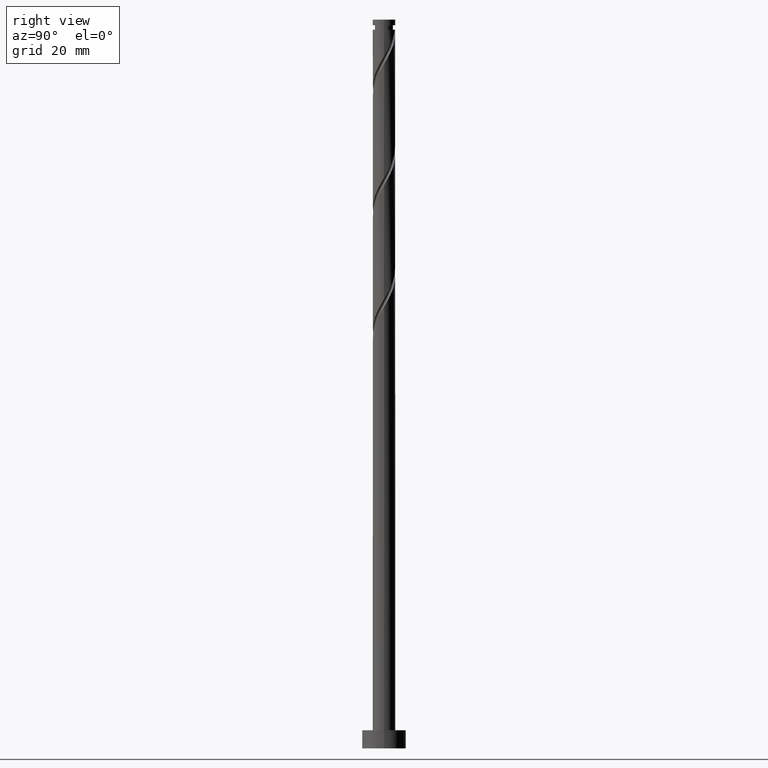
[diagram: clean part render]
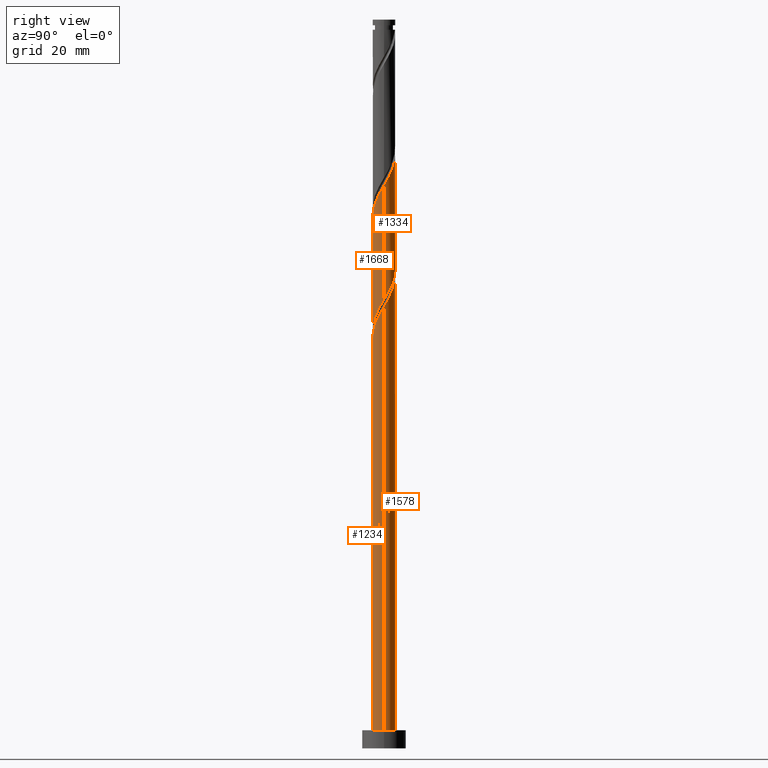
[diagram: same view with one multi-face feature highlighted, each face labeled with its STEP entity id]
A machine part, right view. The highlighted faces form ONE feature: a constant-radius fillet chain: 4 tangent blend faces with common blend radius 3.1 mm. The faces share edges in the B-rep.
Their STEP definitions:
[1] entity #1234 (Cylinder):
#24 = EDGE_CURVE ( 'NONE', #1745, #635, #381, .T. ) ;
#33 = CARTESIAN_POINT ( 'NONE',  ( 3.100000000000003197, -0.09530005013878890818, 120.9722201662647905 ) ) ;
#65 = VECTOR ( 'NONE', #986, 1000.000000000000000 ) ;
#68 = CARTESIAN_POINT ( 'NONE',  ( -1.371739143660140492, -2.809785738221576512, 110.3933949539474355 ) ) ;
#76 = CARTESIAN_POINT ( 'NONE',  ( 3.094146113249975460, -0.1904201403740988507, 120.8100616206141069 ) ) ;
#83 = CARTESIAN_POINT ( 'NONE',  ( 0.000000000000000000, 0.000000000000000000, 200.0000000000000000 ) ) ;
#97 = CARTESIAN_POINT ( 'NONE',  ( 0.2169319233355950505, -3.119215400321167841, 113.1711727317252070 ) ) ;
#121 = ORIENTED_EDGE ( 'NONE', *, *, #332, .F. ) ;
#169 = ORIENTED_EDGE ( 'NONE', *, *, #191, .T. ) ;
#191 = EDGE_CURVE ( 'NONE', #1492, #1180, #1040, .T. ) ;
#210 = CARTESIAN_POINT ( 'NONE',  ( -2.052224327502170542, -2.359012395595049938, 109.0045060650585640 ) ) ;
#236 = DIRECTION ( 'NONE',  ( -0.000000000000000000, -0.000000000000000000, -1.000000000000000000 ) ) ;
#243 = CYLINDRICAL_SURFACE ( 'NONE', #524, 3.100000000000000089 ) ;
#251 = ORIENTED_EDGE ( 'NONE', *, *, #24, .F. ) ;
#273 = CARTESIAN_POINT ( 'NONE',  ( -2.956784599678840220, -1.016852498676614092, 106.2267282872807783 ) ) ;
#310 = CARTESIAN_POINT ( 'NONE',  ( -2.592853814885981656, -1.747476256661028016, 107.6156171761696925 ) ) ;
#324 = CARTESIAN_POINT ( 'NONE',  ( -3.100000000000000089, 0.000000000000000000, 5.000000000000000000 ) ) ;
#332 = EDGE_CURVE ( 'NONE', #635, #1180, #378, .T. ) ;
#335 = CARTESIAN_POINT ( 'NONE',  ( 1.382164377668820388, -2.774819207282409383, 115.2545060650585498 ) ) ;
#353 = CARTESIAN_POINT ( 'NONE',  ( 3.100000000000002309, 0.000000000000000000, 121.1353838542929253 ) ) ;
#361 = AXIS2_PLACEMENT_3D ( 'NONE', #550, #428, #413 ) ;
#378 = LINE ( 'NONE', #1406, #687 ) ;
#381 =( BOUNDED_CURVE ( )  B_SPLINE_CURVE ( 2, ( #1104, #1598, #401, #273, #1485, #310, #481, #210, #1696, #68, #855, #1428, #1644, #97, #1369, #446, #335, #1514, #616, #1291, #755, #984, #1276, #494, #76, #33, #585 ),
 .UNSPECIFIED., .F., .T. ) 
 B_SPLINE_CURVE_WITH_KNOTS ( ( 3, 2, 2, 2, 2, 2, 2, 2, 2, 2, 2, 2, 2, 3 ),
 ( 0.05453176698144614892, 0.06250000000000000000, 0.07291666666666662966, 0.08333333333333337034, 0.09375000000000000000, 0.1041666666666666297, 0.1145833333333333703, 0.1250000000000000000, 0.1354166666666666297, 0.1458333333333333703, 0.1562500000000000000, 0.1666666666666666297, 0.1770833333333333703, 0.1795317669814463502 ),
 .UNSPECIFIED. ) 
 CURVE ( )  GEOMETRIC_REPRESENTATION_ITEM ( )  RATIONAL_B_SPLINE_CURVE ( ( 0.9062941362546501622, 0.9031415850403541334, 0.9090909090909298218, 0.9013135103398480785, 0.9090909090909298218, 0.9013135103398480785, 0.9090909090909298218, 0.9013135103398480785, 0.9090909090909298218, 0.9013135103398480785, 0.9090909090909298218, 0.9013135103398480785, 0.9090909090909298218, 0.9013135103398480785, 0.9090909090909298218, 0.9013135103398480785, 0.9090909090909298218, 0.9013135103398480785, 0.9090909090909298218, 0.9013135103398480785, 0.9090909090909298218, 0.9013135103398480785, 0.9090909090909298218, 0.9013135103398480785, 0.9090909090909298218, 0.9072628343904235448, 0.9062941362546501622 ) ) 
 REPRESENTATION_ITEM ( '' )  );
#401 = CARTESIAN_POINT ( 'NONE',  ( -3.038000000000003364, -0.6168922110061052511, 105.5322838428363212 ) ) ;
#413 = DIRECTION ( 'NONE',  ( 1.000000000000000000, 0.000000000000000000, 0.000000000000000000 ) ) ;
#428 = DIRECTION ( 'NONE',  ( 0.000000000000000000, 0.000000000000000000, 1.000000000000000000 ) ) ;
#446 = CARTESIAN_POINT ( 'NONE',  ( 1.016852498676613870, -2.956784599678840220, 114.5600616206141353 ) ) ;
#481 = CARTESIAN_POINT ( 'NONE',  ( -2.322539071194074545, -2.053244326128038200, 108.3100616206141211 ) ) ;
#494 = CARTESIAN_POINT ( 'NONE',  ( 3.069076826178783524, -0.5977722040837909478, 120.1156171761696640 ) ) ;
#524 = AXIS2_PLACEMENT_3D ( 'NONE', #83, #236, #638 ) ;
#550 = CARTESIAN_POINT ( 'NONE',  ( 0.000000000000000000, 0.000000000000000000, 5.000000000000000000 ) ) ;
#585 = CARTESIAN_POINT ( 'NONE',  ( 3.100000000000002309, 0.000000000000000000, 121.1353838542929253 ) ) ;
#616 = CARTESIAN_POINT ( 'NONE',  ( 2.053244326128038200, -2.322539071194075877, 116.6433949539474355 ) ) ;
#635 = VERTEX_POINT ( 'NONE', #353 ) ;
#638 = DIRECTION ( 'NONE',  ( -1.000000000000000000, 0.000000000000000000, 0.000000000000000000 ) ) ;
#658 = FACE_OUTER_BOUND ( 'NONE', #1230, .T. ) ;
#687 = VECTOR ( 'NONE', #1272, 1000.000000000000000 ) ;
#755 = CARTESIAN_POINT ( 'NONE',  ( 2.584399066908312115, -1.711981735581156183, 118.0322838428363497 ) ) ;
#855 = CARTESIAN_POINT ( 'NONE',  ( -0.9847556738719654978, -2.939431282200180462, 111.0878393983919068 ) ) ;
#877 = LINE ( 'NONE', #1007, #65 ) ;
#984 = CARTESIAN_POINT ( 'NONE',  ( 2.809785738221576512, -1.371739143660140492, 118.7267282872807783 ) ) ;
#986 = DIRECTION ( 'NONE',  ( -0.000000000000000000, -0.000000000000000000, -1.000000000000000000 ) ) ;
#1007 = CARTESIAN_POINT ( 'NONE',  ( -3.100000000000000089, 0.000000000000000000, 200.0000000000000000 ) ) ;
#1040 = CIRCLE ( 'NONE', #361, 3.100000000000000089 ) ;
#1048 = EDGE_CURVE ( 'NONE', #1745, #1492, #877, .T. ) ;
#1104 = CARTESIAN_POINT ( 'NONE',  ( -3.100000000000002309, -1.958945762114218998E-15, 104.4687171876262539 ) ) ;
#1180 = VERTEX_POINT ( 'NONE', #1663 ) ;
#1230 = EDGE_LOOP ( 'NONE', ( #121, #251, #1664, #169 ) ) ;
#1234 = ADVANCED_FACE ( 'NONE', ( #658 ), #243, .T. ) ;
#1272 = DIRECTION ( 'NONE',  ( -0.000000000000000000, -0.000000000000000000, -1.000000000000000000 ) ) ;
#1276 = CARTESIAN_POINT ( 'NONE',  ( 2.939431282200180462, -0.9847556738719657199, 119.4211727317252212 ) ) ;
#1291 = CARTESIAN_POINT ( 'NONE',  ( 2.359012395595049938, -2.052224327502170542, 117.3378393983918926 ) ) ;
#1369 = CARTESIAN_POINT ( 'NONE',  ( 0.6168922110061049180, -3.038000000000003364, 113.8656171761696214 ) ) ;
#1406 = CARTESIAN_POINT ( 'NONE',  ( 3.100000000000000089, 3.796405077356794918E-16, 200.0000000000000000 ) ) ;
#1428 = CARTESIAN_POINT ( 'NONE',  ( -0.5977722040837896156, -3.069076826178783968, 111.7822838428363212 ) ) ;
#1485 = CARTESIAN_POINT ( 'NONE',  ( -2.774819207282409383, -1.382164377668821054, 106.9211727317252212 ) ) ;
#1492 = VERTEX_POINT ( 'NONE', #324 ) ;
#1514 = CARTESIAN_POINT ( 'NONE',  ( 1.747476256661027350, -2.592853814885982100, 115.9489505095030069 ) ) ;
#1597 = CARTESIAN_POINT ( 'NONE',  ( -3.100000000000002309, -1.958945762114218998E-15, 104.4687171876262539 ) ) ;
#1598 = CARTESIAN_POINT ( 'NONE',  ( -3.100000000000005418, -0.3115617227303494885, 105.0021435568155113 ) ) ;
#1644 = CARTESIAN_POINT ( 'NONE',  ( -0.1904201403740973519, -3.094146113249975460, 112.4767282872807925 ) ) ;
#1663 = CARTESIAN_POINT ( 'NONE',  ( 3.100000000000000089, 3.796405077356794918E-16, 5.000000000000000000 ) ) ;
#1664 = ORIENTED_EDGE ( 'NONE', *, *, #1048, .T. ) ;
#1696 = CARTESIAN_POINT ( 'NONE',  ( -1.711981735581154407, -2.584399066908313003, 109.6989505095029926 ) ) ;
#1745 = VERTEX_POINT ( 'NONE', #1597 ) ;
[2] entity #1578 (Cylinder):
#11 = CARTESIAN_POINT ( 'NONE',  ( 0.6168922110061058062, 3.037999999999999812, 97.19895050950300686 ) ) ;
#28 = CARTESIAN_POINT ( 'NONE',  ( -1.016852498676614758, 2.956784599678839776, 97.89339495394742130 ) ) ;
#55 = EDGE_CURVE ( 'NONE', #412, #425, #927, .T. ) ;
#65 = VECTOR ( 'NONE', #986, 1000.000000000000000 ) ;
#111 = CARTESIAN_POINT ( 'NONE',  ( -2.584399066908313447, 1.711981735581154185, 134.6989505095030211 ) ) ;
#118 = CARTESIAN_POINT ( 'NONE',  ( -3.100000000000000977, -5.174009417492547968E-15, 106.5958504980464170 ) ) ;
#130 = ORIENTED_EDGE ( 'NONE', *, *, #332, .T. ) ;
#147 = AXIS2_PLACEMENT_3D ( 'NONE', #270, #252, #815 ) ;
#158 = EDGE_LOOP ( 'NONE', ( #518, #130, #679, #427, #1613, #963, #558, #1709 ) ) ;
#202 = CARTESIAN_POINT ( 'NONE',  ( -3.037999999999999812, 0.6168922110061053621, 105.5322838428363497 ) ) ;
#205 = CARTESIAN_POINT ( 'NONE',  ( 0.000000000000000000, 0.000000000000000000, 200.0000000000000000 ) ) ;
#221 = CARTESIAN_POINT ( 'NONE',  ( -2.809785738221577400, 1.371739143660139382, 135.3933949539474213 ) ) ;
#252 = DIRECTION ( 'NONE',  ( -4.970141791967064741E-30, -3.357529308342211249E-14, -1.000000000000000000 ) ) ;
#270 = CARTESIAN_POINT ( 'NONE',  ( 0.000000000000000000, 0.000000000000000000, 97.19895050950310633 ) ) ;
#316 = EDGE_CURVE ( 'NONE', #933, #412, #368, .T. ) ;
#324 = CARTESIAN_POINT ( 'NONE',  ( -3.100000000000000089, 0.000000000000000000, 5.000000000000000000 ) ) ;
#331 = CIRCLE ( 'NONE', #147, 3.100000000000000089 ) ;
#332 = EDGE_CURVE ( 'NONE', #635, #1180, #378, .T. ) ;
#347 = CARTESIAN_POINT ( 'NONE',  ( 2.052224327502171430, 2.359012395595048162, 125.6711727317252354 ) ) ;
#353 = CARTESIAN_POINT ( 'NONE',  ( 3.100000000000002309, 0.000000000000000000, 121.1353838542929253 ) ) ;
#355 = CARTESIAN_POINT ( 'NONE',  ( -0.9847556738719625002, 2.939431282200177353, 99.97672828728079253 ) ) ;
#362 = CARTESIAN_POINT ( 'NONE',  ( 0.5977722040837911699, 3.069076826178783524, 128.4489505095029926 ) ) ;
#368 = LINE ( 'NONE', #1718, #1429 ) ;
#371 = CARTESIAN_POINT ( 'NONE',  ( -3.094146113249975460, 0.1904201403740971021, 137.4767282872807641 ) ) ;
#378 = LINE ( 'NONE', #1406, #687 ) ;
#383 = CARTESIAN_POINT ( 'NONE',  ( 0.9847556738719657199, 2.939431282200179574, 127.7545060650585356 ) ) ;
#388 = CARTESIAN_POINT ( 'NONE',  ( 3.100000000000002753, 0.3115617227303551506, 121.6688102234821969 ) ) ;
#412 = VERTEX_POINT ( 'NONE', #118 ) ;
#425 = VERTEX_POINT ( 'NONE', #11 ) ;
#427 = ORIENTED_EDGE ( 'NONE', *, *, #1048, .F. ) ;
#439 = CARTESIAN_POINT ( 'NONE',  ( -2.584399066908313447, 1.711981735581154185, 101.3656171761696925 ) ) ;
#468 = EDGE_CURVE ( 'NONE', #1630, #425, #331, .T. ) ;
#473 = CARTESIAN_POINT ( 'NONE',  ( -1.371739143660136939, 2.809785738221574292, 100.6711727317252354 ) ) ;
#485 = DIRECTION ( 'NONE',  ( -1.000000000000000000, 0.000000000000000000, 0.000000000000000000 ) ) ;
#510 = CARTESIAN_POINT ( 'NONE',  ( -2.939431282200180906, 0.9847556738719646097, 136.0878393983918784 ) ) ;
#518 = ORIENTED_EDGE ( 'NONE', *, *, #586, .F. ) ;
#534 = CARTESIAN_POINT ( 'NONE',  ( -3.100000000000002309, 0.09530005013880209208, 137.6388868329314334 ) ) ;
#542 = CARTESIAN_POINT ( 'NONE',  ( -1.382164377668821498, 2.774819207282409383, 98.58783939839189259 ) ) ;
#551 = CARTESIAN_POINT ( 'NONE',  ( -2.939431282200180906, 0.9847556738719646097, 102.7545060650585782 ) ) ;
#553 = AXIS2_PLACEMENT_3D ( 'NONE', #205, #1130, #485 ) ;
#558 = ORIENTED_EDGE ( 'NONE', *, *, #55, .F. ) ;
#586 = EDGE_CURVE ( 'NONE', #635, #933, #688, .T. ) ;
#624 = CARTESIAN_POINT ( 'NONE',  ( -2.592853814885977215, 1.747476256661027572, 103.4489505095030211 ) ) ;
#635 = VERTEX_POINT ( 'NONE', #353 ) ;
#679 = ORIENTED_EDGE ( 'NONE', *, *, #1143, .T. ) ;
#684 = CARTESIAN_POINT ( 'NONE',  ( 2.774819207282409383, 1.382164377668820165, 123.5878393983918784 ) ) ;
#686 = CARTESIAN_POINT ( 'NONE',  ( -2.053244326128039088, 2.322539071194074545, 99.97672828728077832 ) ) ;
#687 = VECTOR ( 'NONE', #1272, 1000.000000000000000 ) ;
#688 =( BOUNDED_CURVE ( )  B_SPLINE_CURVE ( 2, ( #1586, #388, #931, #806, #684, #1212, #1682, #347, #762, #1282, #383, #362, #1436, #1034, #1426, #904, #809, #1556, #1042, #1711, #111, #221, #510, #934, #371, #534, #770 ),
 .UNSPECIFIED., .F., .T. ) 
 B_SPLINE_CURVE_WITH_KNOTS ( ( 3, 2, 2, 2, 2, 2, 2, 2, 2, 2, 2, 2, 2, 3 ),
 ( 0.1795317669814463502, 0.1875000000000000000, 0.1979166666666666297, 0.2083333333333333703, 0.2187500000000000000, 0.2291666666666666297, 0.2395833333333333703, 0.2500000000000000000, 0.2604166666666666297, 0.2708333333333333703, 0.2812500000000000000, 0.2916666666666666297, 0.3020833333333333703, 0.3045317669814459616 ),
 .UNSPECIFIED. ) 
 CURVE ( )  GEOMETRIC_REPRESENTATION_ITEM ( )  RATIONAL_B_SPLINE_CURVE ( ( 0.9062941362546501622, 0.9031415850403543555, 0.9090909090909298218, 0.9013135103398480785, 0.9090909090909298218, 0.9013135103398480785, 0.9090909090909298218, 0.9013135103398480785, 0.9090909090909298218, 0.9013135103398480785, 0.9090909090909298218, 0.9013135103398480785, 0.9090909090909298218, 0.9013135103398480785, 0.9090909090909298218, 0.9013135103398480785, 0.9090909090909298218, 0.9013135103398480785, 0.9090909090909298218, 0.9013135103398480785, 0.9090909090909298218, 0.9013135103398480785, 0.9090909090909298218, 0.9013135103398480785, 0.9090909090909298218, 0.9072628343904237669, 0.9062941362546503843 ) ) 
 REPRESENTATION_ITEM ( '' )  );
#721 = CARTESIAN_POINT ( 'NONE',  ( -3.100000000000000977, -5.174009417492547968E-15, 106.5958504980464170 ) ) ;
#746 = CARTESIAN_POINT ( 'NONE',  ( -2.956784599678835779, 1.016852498676613870, 104.8378393983919068 ) ) ;
#749 = AXIS2_PLACEMENT_3D ( 'NONE', #1417, #1390, #1131 ) ;
#762 = CARTESIAN_POINT ( 'NONE',  ( 1.711981735581154407, 2.584399066908313003, 126.3656171761696783 ) ) ;
#770 = CARTESIAN_POINT ( 'NONE',  ( -3.100000000000002309, -1.958945762114219392E-15, 137.8020505209595967 ) ) ;
#806 = CARTESIAN_POINT ( 'NONE',  ( 2.956784599678840664, 1.016852498676613648, 122.8933949539474071 ) ) ;
#809 = CARTESIAN_POINT ( 'NONE',  ( -1.382164377668821498, 2.774819207282409383, 131.9211727317252212 ) ) ;
#815 = DIRECTION ( 'NONE',  ( 0.000000000000000000, 1.000000000000000000, -3.581364595565020915E-14 ) ) ;
#826 = CARTESIAN_POINT ( 'NONE',  ( -3.094146113249975460, 0.1904201403740971021, 104.1433949539474355 ) ) ;
#871 = FACE_OUTER_BOUND ( 'NONE', #158, .T. ) ;
#877 = LINE ( 'NONE', #1007, #65 ) ;
#904 = CARTESIAN_POINT ( 'NONE',  ( -1.016852498676614758, 2.956784599678839776, 131.2267282872807641 ) ) ;
#909 = DIRECTION ( 'NONE',  ( -0.000000000000000000, -0.000000000000000000, -1.000000000000000000 ) ) ;
#927 =( BOUNDED_CURVE ( )  B_SPLINE_CURVE ( 2, ( #721, #1403, #202, #746, #1113, #624, #1559, #1140, #1675, #473, #355, #1027, #1009, #1154, #1705 ),
 .UNSPECIFIED., .F., .T. ) 
 B_SPLINE_CURVE_WITH_KNOTS ( ( 3, 2, 2, 2, 2, 2, 2, 3 ),
 ( 0.9295317669814463502, 0.9375000000000000000, 0.9479166666666666297, 0.9583333333333333703, 0.9687500000000000000, 0.9791666666666666297, 0.9895833333333333703, 1.000000000000000000 ),
 .UNSPECIFIED. ) 
 CURVE ( )  GEOMETRIC_REPRESENTATION_ITEM ( )  RATIONAL_B_SPLINE_CURVE ( ( 0.9062941362546446111, 0.9031415850403490264, 0.9090909090909243817, 0.9013135103398428605, 0.9090909090909243817, 0.9013135103398428605, 0.9090909090909243817, 0.9013135103398428605, 0.9090909090909243817, 0.9013135103398428605, 0.9090909090909243817, 0.9013135103398428605, 0.9090909090909243817, 0.9013135103398428605, 0.9090909090909243817 ) ) 
 REPRESENTATION_ITEM ( '' )  );
#931 = CARTESIAN_POINT ( 'NONE',  ( 3.038000000000003364, 0.6168922110061046959, 122.1989505095030069 ) ) ;
#933 = VERTEX_POINT ( 'NONE', #1353 ) ;
#934 = CARTESIAN_POINT ( 'NONE',  ( -3.069076826178783968, 0.5977722040837893935, 136.7822838428363639 ) ) ;
#963 = ORIENTED_EDGE ( 'NONE', *, *, #468, .T. ) ;
#977 = CARTESIAN_POINT ( 'NONE',  ( -3.100000000000002309, 0.09530005013879476461, 104.3055534995980906 ) ) ;
#986 = DIRECTION ( 'NONE',  ( -0.000000000000000000, -0.000000000000000000, -1.000000000000000000 ) ) ;
#995 = EDGE_CURVE ( 'NONE', #1630, #1745, #1033, .T. ) ;
#998 = CARTESIAN_POINT ( 'NONE',  ( -0.6168922110061045849, 3.038000000000002920, 97.19895050950300686 ) ) ;
#1007 = CARTESIAN_POINT ( 'NONE',  ( -3.100000000000000089, 0.000000000000000000, 200.0000000000000000 ) ) ;
#1009 = CARTESIAN_POINT ( 'NONE',  ( -0.1904201403740956866, 3.094146113249972796, 98.58783939839189259 ) ) ;
#1027 = CARTESIAN_POINT ( 'NONE',  ( -0.5977722040837880613, 3.069076826178780415, 99.28228384283634966 ) ) ;
#1033 =( BOUNDED_CURVE ( )  B_SPLINE_CURVE ( 2, ( #1240, #28, #542, #1337, #686, #1343, #439, #1106, #551, #1070, #826, #977, #1507 ),
 .UNSPECIFIED., .F., .T. ) 
 B_SPLINE_CURVE_WITH_KNOTS ( ( 3, 2, 2, 2, 2, 2, 3 ),
 ( 0.000000000000000000, 0.01041666666666662966, 0.02083333333333337034, 0.03125000000000000000, 0.04166666666666662966, 0.05208333333333336340, 0.05453176698144614892 ),
 .UNSPECIFIED. ) 
 CURVE ( )  GEOMETRIC_REPRESENTATION_ITEM ( )  RATIONAL_B_SPLINE_CURVE ( ( 0.9090909090909298218, 0.9013135103398480785, 0.9090909090909298218, 0.9013135103398480785, 0.9090909090909298218, 0.9013135103398480785, 0.9090909090909298218, 0.9013135103398480785, 0.9090909090909298218, 0.9013135103398480785, 0.9090909090909298218, 0.9072628343904236559, 0.9062941362546501622 ) ) 
 REPRESENTATION_ITEM ( '' )  );
#1034 = CARTESIAN_POINT ( 'NONE',  ( -0.2169319233355931631, 3.119215400321167841, 129.8378393983918784 ) ) ;
#1042 = CARTESIAN_POINT ( 'NONE',  ( -2.053244326128039088, 2.322539071194074545, 133.3100616206140785 ) ) ;
#1048 = EDGE_CURVE ( 'NONE', #1745, #1492, #877, .T. ) ;
#1070 = CARTESIAN_POINT ( 'NONE',  ( -3.069076826178783968, 0.5977722040837893935, 103.4489505095030069 ) ) ;
#1106 = CARTESIAN_POINT ( 'NONE',  ( -2.809785738221577400, 1.371739143660139382, 102.0600616206141211 ) ) ;
#1113 = CARTESIAN_POINT ( 'NONE',  ( -2.774819207282405831, 1.382164377668820832, 104.1433949539474639 ) ) ;
#1130 = DIRECTION ( 'NONE',  ( -0.000000000000000000, -0.000000000000000000, -1.000000000000000000 ) ) ;
#1131 = DIRECTION ( 'NONE',  ( 1.000000000000000000, 0.000000000000000000, 0.000000000000000000 ) ) ;
#1140 = CARTESIAN_POINT ( 'NONE',  ( -2.052224327502166545, 2.359012395595047717, 102.0600616206141069 ) ) ;
#1143 = EDGE_CURVE ( 'NONE', #1180, #1492, #1383, .T. ) ;
#1154 = CARTESIAN_POINT ( 'NONE',  ( 0.2169319233355964660, 3.119215400321164733, 97.89339495394744972 ) ) ;
#1180 = VERTEX_POINT ( 'NONE', #1663 ) ;
#1212 = CARTESIAN_POINT ( 'NONE',  ( 2.592853814885982100, 1.747476256661027350, 124.2822838428363355 ) ) ;
#1240 = CARTESIAN_POINT ( 'NONE',  ( -0.6168922110061045849, 3.038000000000002920, 97.19895050950300686 ) ) ;
#1272 = DIRECTION ( 'NONE',  ( -0.000000000000000000, -0.000000000000000000, -1.000000000000000000 ) ) ;
#1282 = CARTESIAN_POINT ( 'NONE',  ( 1.371739143660140714, 2.809785738221576512, 127.0600616206140927 ) ) ;
#1337 = CARTESIAN_POINT ( 'NONE',  ( -1.747476256661028904, 2.592853814885981656, 99.28228384283634966 ) ) ;
#1343 = CARTESIAN_POINT ( 'NONE',  ( -2.359012395595050826, 2.052224327502169654, 100.6711727317252212 ) ) ;
#1353 = CARTESIAN_POINT ( 'NONE',  ( -3.100000000000002309, -1.958945762114218998E-15, 137.8020505209595967 ) ) ;
#1383 = CIRCLE ( 'NONE', #749, 3.100000000000000089 ) ;
#1390 = DIRECTION ( 'NONE',  ( 0.000000000000000000, 0.000000000000000000, 1.000000000000000000 ) ) ;
#1398 = CYLINDRICAL_SURFACE ( 'NONE', #553, 3.100000000000000089 ) ;
#1403 = CARTESIAN_POINT ( 'NONE',  ( -3.100000000000000977, 0.3115617227303581482, 106.0624241288571170 ) ) ;
#1406 = CARTESIAN_POINT ( 'NONE',  ( 3.100000000000000089, 3.796405077356794918E-16, 200.0000000000000000 ) ) ;
#1417 = CARTESIAN_POINT ( 'NONE',  ( 0.000000000000000000, 0.000000000000000000, 5.000000000000000000 ) ) ;
#1426 = CARTESIAN_POINT ( 'NONE',  ( -0.6168922110061045849, 3.038000000000003364, 130.5322838428363070 ) ) ;
#1429 = VECTOR ( 'NONE', #909, 1000.000000000000000 ) ;
#1436 = CARTESIAN_POINT ( 'NONE',  ( 0.1904201403740989340, 3.094146113249975460, 129.1433949539474497 ) ) ;
#1492 = VERTEX_POINT ( 'NONE', #324 ) ;
#1507 = CARTESIAN_POINT ( 'NONE',  ( -3.100000000000002309, -1.958945762114218998E-15, 104.4687171876262539 ) ) ;
#1556 = CARTESIAN_POINT ( 'NONE',  ( -1.747476256661028904, 2.592853814885981656, 132.6156171761696498 ) ) ;
#1559 = CARTESIAN_POINT ( 'NONE',  ( -2.322539071194071880, 2.053244326128036867, 102.7545060650585782 ) ) ;
#1578 = ADVANCED_FACE ( 'NONE', ( #871 ), #1398, .T. ) ;
#1586 = CARTESIAN_POINT ( 'NONE',  ( 3.100000000000002309, 0.000000000000000000, 121.1353838542929253 ) ) ;
#1597 = CARTESIAN_POINT ( 'NONE',  ( -3.100000000000002309, -1.958945762114218998E-15, 104.4687171876262539 ) ) ;
#1613 = ORIENTED_EDGE ( 'NONE', *, *, #995, .F. ) ;
#1630 = VERTEX_POINT ( 'NONE', #998 ) ;
#1663 = CARTESIAN_POINT ( 'NONE',  ( 3.100000000000000089, 3.796405077356794918E-16, 5.000000000000000000 ) ) ;
#1675 = CARTESIAN_POINT ( 'NONE',  ( -1.711981735581151964, 2.584399066908310783, 101.3656171761696783 ) ) ;
#1682 = CARTESIAN_POINT ( 'NONE',  ( 2.322539071194076765, 2.053244326128037311, 124.9767282872807641 ) ) ;
#1705 = CARTESIAN_POINT ( 'NONE',  ( 0.6168922110061058062, 3.037999999999999812, 97.19895050950300686 ) ) ;
#1709 = ORIENTED_EDGE ( 'NONE', *, *, #316, .F. ) ;
#1711 = CARTESIAN_POINT ( 'NONE',  ( -2.359012395595050826, 2.052224327502169654, 134.0045060650585356 ) ) ;
#1718 = CARTESIAN_POINT ( 'NONE',  ( -3.100000000000000089, 0.000000000000000000, 200.0000000000000000 ) ) ;
#1745 = VERTEX_POINT ( 'NONE', #1597 ) ;
[3] entity #1668 (Cylinder):
#4 = CARTESIAN_POINT ( 'NONE',  ( -3.100000000000002309, -1.958945762114219392E-15, 137.8020505209595967 ) ) ;
#34 = CARTESIAN_POINT ( 'NONE',  ( 2.956784599678834002, -1.016852498676616312, 121.5045060650585640 ) ) ;
#63 = CARTESIAN_POINT ( 'NONE',  ( -1.711981735581154407, -2.584399066908313003, 143.0322838428363070 ) ) ;
#74 = CARTESIAN_POINT ( 'NONE',  ( -0.1904201403740973519, -3.094146113249975460, 145.8100616206140785 ) ) ;
#108 = CARTESIAN_POINT ( 'NONE',  ( -1.016852498676614980, -2.956784599678835779, 113.1711727317252354 ) ) ;
#110 = VERTEX_POINT ( 'NONE', #1684 ) ;
#118 = CARTESIAN_POINT ( 'NONE',  ( -3.100000000000000977, -5.174009417492547968E-15, 106.5958504980464170 ) ) ;
#152 = CARTESIAN_POINT ( 'NONE',  ( -3.100000000000006306, -0.3115617227303422165, 138.3354768901488683 ) ) ;
#204 = CARTESIAN_POINT ( 'NONE',  ( -1.382164377668821054, -2.774819207282405831, 112.4767282872808067 ) ) ;
#212 = CARTESIAN_POINT ( 'NONE',  ( -2.809785738221574292, -1.371739143660136495, 109.0045060650585498 ) ) ;
#219 = CARTESIAN_POINT ( 'NONE',  ( 0.1904201403740945764, -3.094146113249972796, 115.2545060650585498 ) ) ;
#235 = EDGE_CURVE ( 'NONE', #110, #412, #314, .T. ) ;
#284 = CARTESIAN_POINT ( 'NONE',  ( -2.052224327502170542, -2.359012395595049938, 142.3378393983919352 ) ) ;
#314 =( BOUNDED_CURVE ( )  B_SPLINE_CURVE ( 2, ( #1504, #469, #1005, #34, #882, #1158, #1570, #1699, #1679, #475, #1553, #1168, #219, #1279, #766, #108, #204, #783, #1031, #1707, #1422, #212, #1562, #1151, #1687, #1307, #1020 ),
 .UNSPECIFIED., .F., .T. ) 
 B_SPLINE_CURVE_WITH_KNOTS ( ( 3, 2, 2, 2, 2, 2, 2, 2, 2, 2, 2, 2, 2, 3 ),
 ( 0.8045317669814462391, 0.8125000000000000000, 0.8229166666666666297, 0.8333333333333333703, 0.8437500000000000000, 0.8541666666666666297, 0.8645833333333333703, 0.8750000000000000000, 0.8854166666666666297, 0.8958333333333333703, 0.9062500000000000000, 0.9166666666666666297, 0.9270833333333333703, 0.9295317669814463502 ),
 .UNSPECIFIED. ) 
 CURVE ( )  GEOMETRIC_REPRESENTATION_ITEM ( )  RATIONAL_B_SPLINE_CURVE ( ( 0.9062941362546447222, 0.9031415850403489154, 0.9090909090909243817, 0.9013135103398428605, 0.9090909090909243817, 0.9013135103398428605, 0.9090909090909243817, 0.9013135103398428605, 0.9090909090909243817, 0.9013135103398428605, 0.9090909090909243817, 0.9013135103398428605, 0.9090909090909243817, 0.9013135103398428605, 0.9090909090909243817, 0.9013135103398428605, 0.9090909090909243817, 0.9013135103398428605, 0.9090909090909243817, 0.9013135103398428605, 0.9090909090909243817, 0.9013135103398428605, 0.9090909090909243817, 0.9013135103398428605, 0.9090909090909243817, 0.9072628343904181047, 0.9062941362546446111 ) ) 
 REPRESENTATION_ITEM ( '' )  );
#316 = EDGE_CURVE ( 'NONE', #933, #412, #368, .T. ) ;
#325 = CARTESIAN_POINT ( 'NONE',  ( 2.809785738221576512, -1.371739143660140492, 152.0600616206140785 ) ) ;
#368 = LINE ( 'NONE', #1718, #1429 ) ;
#412 = VERTEX_POINT ( 'NONE', #118 ) ;
#448 = CARTESIAN_POINT ( 'NONE',  ( 1.747476256661027350, -2.592853814885982100, 149.2822838428363639 ) ) ;
#457 = CARTESIAN_POINT ( 'NONE',  ( 2.584399066908312115, -1.711981735581156183, 151.3656171761696783 ) ) ;
#469 = CARTESIAN_POINT ( 'NONE',  ( 3.100000000000001421, -0.3115617227303542069, 122.7290907955238453 ) ) ;
#471 = CARTESIAN_POINT ( 'NONE',  ( 2.053244326128038200, -2.322539071194075877, 149.9767282872807641 ) ) ;
#475 = CARTESIAN_POINT ( 'NONE',  ( 1.371739143660136495, -2.809785738221574292, 117.3378393983919210 ) ) ;
#605 = CARTESIAN_POINT ( 'NONE',  ( 1.016852498676613870, -2.956784599678840220, 147.8933949539473929 ) ) ;
#613 = CARTESIAN_POINT ( 'NONE',  ( 0.2169319233355950505, -3.119215400321167841, 146.5045060650585071 ) ) ;
#639 = VECTOR ( 'NONE', #1452, 1000.000000000000000 ) ;
#698 = CARTESIAN_POINT ( 'NONE',  ( -3.038000000000003364, -0.6168922110061052511, 138.8656171761696783 ) ) ;
#751 = CARTESIAN_POINT ( 'NONE',  ( 3.094146113249975460, -0.1904201403740988507, 154.1433949539474497 ) ) ;
#766 = CARTESIAN_POINT ( 'NONE',  ( -0.6168922110061054731, -3.037999999999999812, 113.8656171761696640 ) ) ;
#783 = CARTESIAN_POINT ( 'NONE',  ( -1.747476256661028238, -2.592853814885977215, 111.7822838428363212 ) ) ;
#866 = CARTESIAN_POINT ( 'NONE',  ( 2.939431282200180462, -0.9847556738719657199, 152.7545060650585356 ) ) ;
#872 = CARTESIAN_POINT ( 'NONE',  ( 0.6168922110061049180, -3.038000000000003364, 147.1989505095029926 ) ) ;
#882 = CARTESIAN_POINT ( 'NONE',  ( 2.774819207282405387, -1.382164377668822164, 120.8100616206141069 ) ) ;
#909 = DIRECTION ( 'NONE',  ( -0.000000000000000000, -0.000000000000000000, -1.000000000000000000 ) ) ;
#933 = VERTEX_POINT ( 'NONE', #1353 ) ;
#974 = EDGE_LOOP ( 'NONE', ( #1501, #1555, #1490, #1132 ) ) ;
#1005 = CARTESIAN_POINT ( 'NONE',  ( 3.037999999999999812, -0.6168922110061054731, 122.1989505095029926 ) ) ;
#1014 = EDGE_CURVE ( 'NONE', #933, #1236, #1164, .T. ) ;
#1020 = CARTESIAN_POINT ( 'NONE',  ( -3.100000000000000977, -5.174009417492547968E-15, 106.5958504980464170 ) ) ;
#1031 = CARTESIAN_POINT ( 'NONE',  ( -2.053244326128037756, -2.322539071194071436, 111.0878393983919068 ) ) ;
#1066 = DIRECTION ( 'NONE',  ( -1.000000000000000000, 0.000000000000000000, 0.000000000000000000 ) ) ;
#1088 = CARTESIAN_POINT ( 'NONE',  ( -2.592853814885981656, -1.747476256661028016, 140.9489505095029926 ) ) ;
#1115 = CARTESIAN_POINT ( 'NONE',  ( -0.9847556738719654978, -2.939431282200180462, 144.4211727317252212 ) ) ;
#1122 = CARTESIAN_POINT ( 'NONE',  ( 2.359012395595049938, -2.052224327502170542, 150.6711727317251928 ) ) ;
#1132 = ORIENTED_EDGE ( 'NONE', *, *, #235, .F. ) ;
#1138 = CARTESIAN_POINT ( 'NONE',  ( 1.382164377668820388, -2.774819207282409383, 148.5878393983918784 ) ) ;
#1151 = CARTESIAN_POINT ( 'NONE',  ( -3.069076826178780415, -0.5977722040837869510, 107.6156171761696640 ) ) ;
#1158 = CARTESIAN_POINT ( 'NONE',  ( 2.592853814885977215, -1.747476256661028460, 120.1156171761696640 ) ) ;
#1164 =( BOUNDED_CURVE ( )  B_SPLINE_CURVE ( 2, ( #4, #152, #698, #1207, #1615, #1088, #1486, #284, #63, #1672, #1115, #1656, #74, #613, #872, #605, #1138, #448, #471, #1122, #457, #325, #866, #1408, #751, #1254, #1531 ),
 .UNSPECIFIED., .F., .T. ) 
 B_SPLINE_CURVE_WITH_KNOTS ( ( 3, 2, 2, 2, 2, 2, 2, 2, 2, 2, 2, 2, 2, 3 ),
 ( 0.3045317669814459616, 0.3125000000000000000, 0.3229166666666666297, 0.3333333333333333703, 0.3437500000000000000, 0.3541666666666666297, 0.3645833333333333703, 0.3750000000000000000, 0.3854166666666666297, 0.3958333333333333703, 0.4062500000000000000, 0.4166666666666666297, 0.4270833333333333703, 0.4295317669814467387 ),
 .UNSPECIFIED. ) 
 CURVE ( )  GEOMETRIC_REPRESENTATION_ITEM ( )  RATIONAL_B_SPLINE_CURVE ( ( 0.9062941362546503843, 0.9031415850403540224, 0.9090909090909298218, 0.9013135103398480785, 0.9090909090909298218, 0.9013135103398480785, 0.9090909090909298218, 0.9013135103398480785, 0.9090909090909298218, 0.9013135103398480785, 0.9090909090909298218, 0.9013135103398480785, 0.9090909090909298218, 0.9013135103398480785, 0.9090909090909298218, 0.9013135103398480785, 0.9090909090909298218, 0.9013135103398480785, 0.9090909090909298218, 0.9013135103398480785, 0.9090909090909298218, 0.9013135103398480785, 0.9090909090909298218, 0.9013135103398480785, 0.9090909090909298218, 0.9072628343904232118, 0.9062941362546497182 ) ) 
 REPRESENTATION_ITEM ( '' )  );
#1168 = CARTESIAN_POINT ( 'NONE',  ( 0.5977722040837861739, -3.069076826178781303, 115.9489505095030069 ) ) ;
#1169 = CARTESIAN_POINT ( 'NONE',  ( 0.000000000000000000, 0.000000000000000000, 200.0000000000000000 ) ) ;
#1203 = EDGE_CURVE ( 'NONE', #1236, #110, #1261, .T. ) ;
#1207 = CARTESIAN_POINT ( 'NONE',  ( -2.956784599678840220, -1.016852498676614092, 139.5600616206141353 ) ) ;
#1236 = VERTEX_POINT ( 'NONE', #1720 ) ;
#1254 = CARTESIAN_POINT ( 'NONE',  ( 3.100000000000003642, -0.09530005013877380915, 154.3055534995981475 ) ) ;
#1261 = LINE ( 'NONE', #1691, #639 ) ;
#1279 = CARTESIAN_POINT ( 'NONE',  ( -0.2169319233355973542, -3.119215400321165621, 114.5600616206141495 ) ) ;
#1296 = CYLINDRICAL_SURFACE ( 'NONE', #1665, 3.100000000000000089 ) ;
#1307 = CARTESIAN_POINT ( 'NONE',  ( -3.100000000000000977, -0.09530005013878531384, 106.7590141860745661 ) ) ;
#1308 = DIRECTION ( 'NONE',  ( -0.000000000000000000, -0.000000000000000000, -1.000000000000000000 ) ) ;
#1353 = CARTESIAN_POINT ( 'NONE',  ( -3.100000000000002309, -1.958945762114218998E-15, 137.8020505209595967 ) ) ;
#1408 = CARTESIAN_POINT ( 'NONE',  ( 3.069076826178783524, -0.5977722040837909478, 153.4489505095029926 ) ) ;
#1422 = CARTESIAN_POINT ( 'NONE',  ( -2.584399066908310783, -1.711981735581151520, 109.6989505095030069 ) ) ;
#1429 = VECTOR ( 'NONE', #909, 1000.000000000000000 ) ;
#1452 = DIRECTION ( 'NONE',  ( -0.000000000000000000, -0.000000000000000000, -1.000000000000000000 ) ) ;
#1460 = FACE_OUTER_BOUND ( 'NONE', #974, .T. ) ;
#1486 = CARTESIAN_POINT ( 'NONE',  ( -2.322539071194074545, -2.053244326128038200, 141.6433949539474497 ) ) ;
#1490 = ORIENTED_EDGE ( 'NONE', *, *, #316, .T. ) ;
#1501 = ORIENTED_EDGE ( 'NONE', *, *, #1203, .F. ) ;
#1504 = CARTESIAN_POINT ( 'NONE',  ( 3.100000000000000977, 4.501089117529643519E-15, 123.2625171647130884 ) ) ;
#1531 = CARTESIAN_POINT ( 'NONE',  ( 3.100000000000002309, 0.000000000000000000, 154.4687171876262823 ) ) ;
#1553 = CARTESIAN_POINT ( 'NONE',  ( 0.9847556738719618341, -2.939431282200177353, 116.6433949539474497 ) ) ;
#1555 = ORIENTED_EDGE ( 'NONE', *, *, #1014, .F. ) ;
#1562 = CARTESIAN_POINT ( 'NONE',  ( -2.939431282200177353, -0.9847556738719620562, 108.3100616206141353 ) ) ;
#1570 = CARTESIAN_POINT ( 'NONE',  ( 2.322539071194071436, -2.053244326128037756, 119.4211727317252212 ) ) ;
#1615 = CARTESIAN_POINT ( 'NONE',  ( -2.774819207282409383, -1.382164377668821054, 140.2545060650585356 ) ) ;
#1656 = CARTESIAN_POINT ( 'NONE',  ( -0.5977722040837896156, -3.069076826178783968, 145.1156171761696498 ) ) ;
#1665 = AXIS2_PLACEMENT_3D ( 'NONE', #1169, #1308, #1066 ) ;
#1668 = ADVANCED_FACE ( 'NONE', ( #1460 ), #1296, .T. ) ;
#1672 = CARTESIAN_POINT ( 'NONE',  ( -1.371739143660140492, -2.809785738221576512, 143.7267282872808494 ) ) ;
#1679 = CARTESIAN_POINT ( 'NONE',  ( 1.711981735581150632, -2.584399066908311671, 118.0322838428363497 ) ) ;
#1684 = CARTESIAN_POINT ( 'NONE',  ( 3.100000000000000533, 4.501089117529644308E-15, 123.2625171647130884 ) ) ;
#1687 = CARTESIAN_POINT ( 'NONE',  ( -3.094146113249972352, -0.1904201403740952703, 106.9211727317252638 ) ) ;
#1691 = CARTESIAN_POINT ( 'NONE',  ( 3.100000000000000089, 3.796405077356794918E-16, 200.0000000000000000 ) ) ;
#1699 = CARTESIAN_POINT ( 'NONE',  ( 2.052224327502166101, -2.359012395595048606, 118.7267282872807925 ) ) ;
#1707 = CARTESIAN_POINT ( 'NONE',  ( -2.359012395595048606, -2.052224327502166101, 110.3933949539474497 ) ) ;
#1718 = CARTESIAN_POINT ( 'NONE',  ( -3.100000000000000089, 0.000000000000000000, 200.0000000000000000 ) ) ;
#1720 = CARTESIAN_POINT ( 'NONE',  ( 3.100000000000002309, 0.000000000000000000, 154.4687171876262823 ) ) ;
[4] entity #1334 (Cylinder):
#16 = CARTESIAN_POINT ( 'NONE',  ( 3.100000000000000977, 4.501089117529643519E-15, 123.2625171647130884 ) ) ;
#110 = VERTEX_POINT ( 'NONE', #1684 ) ;
#160 = CARTESIAN_POINT ( 'NONE',  ( -2.939431282200180906, 0.9847556738719646097, 169.4211727317251643 ) ) ;
#175 = EDGE_CURVE ( 'NONE', #1731, #110, #442, .T. ) ;
#214 = CARTESIAN_POINT ( 'NONE',  ( 2.584399066908310783, 1.711981735581151520, 126.3656171761696783 ) ) ;
#231 = CARTESIAN_POINT ( 'NONE',  ( -2.956784599678835779, 1.016852498676613870, 138.1711727317252496 ) ) ;
#242 = CARTESIAN_POINT ( 'NONE',  ( -3.100000000000000977, -5.174009417492547968E-15, 139.9291838313797882 ) ) ;
#265 = CARTESIAN_POINT ( 'NONE',  ( -2.359012395595050826, 2.052224327502169654, 167.3378393983919636 ) ) ;
#274 = CARTESIAN_POINT ( 'NONE',  ( -3.094146113249975460, 0.1904201403740971021, 170.8100616206141353 ) ) ;
#295 = CARTESIAN_POINT ( 'NONE',  ( -3.069076826178783968, 0.5977722040837893935, 170.1156171761696214 ) ) ;
#304 = CARTESIAN_POINT ( 'NONE',  ( -0.6168922110061045849, 3.038000000000003364, 163.8656171761697067 ) ) ;
#341 = CARTESIAN_POINT ( 'NONE',  ( 1.747476256661028682, 2.592853814885977215, 128.4489505095030211 ) ) ;
#390 = FACE_OUTER_BOUND ( 'NONE', #1000, .T. ) ;
#402 = CARTESIAN_POINT ( 'NONE',  ( 1.711981735581154407, 2.584399066908313003, 159.6989505095029358 ) ) ;
#414 = CARTESIAN_POINT ( 'NONE',  ( -2.053244326128039088, 2.322539071194074545, 166.6433949539474781 ) ) ;
#418 = CARTESIAN_POINT ( 'NONE',  ( -3.100000000000000089, 0.000000000000000000, 200.0000000000000000 ) ) ;
#426 = EDGE_CURVE ( 'NONE', #1347, #1731, #1738, .T. ) ;
#429 = CARTESIAN_POINT ( 'NONE',  ( -3.100000000000003197, -9.570422043916794427E-16, 171.1353838542928827 ) ) ;
#442 =( BOUNDED_CURVE ( )  B_SPLINE_CURVE ( 2, ( #781, #916, #1439, #231, #1055, #525, #1303, #651, #513, #1713, #1013, #1424, #1545, #487, #1297, #636, #1160, #341, #1702, #1416, #214, #1281, #941, #1469, #1351, #704, #16 ),
 .UNSPECIFIED., .F., .T. ) 
 B_SPLINE_CURVE_WITH_KNOTS ( ( 3, 2, 2, 2, 2, 2, 2, 2, 2, 2, 2, 2, 2, 3 ),
 ( 0.6795317669814460171, 0.6875000000000000000, 0.6979166666666666297, 0.7083333333333333703, 0.7187500000000000000, 0.7291666666666666297, 0.7395833333333333703, 0.7500000000000000000, 0.7604166666666666297, 0.7708333333333333703, 0.7812500000000000000, 0.7916666666666666297, 0.8020833333333333703, 0.8045317669814462391 ),
 .UNSPECIFIED. ) 
 CURVE ( )  GEOMETRIC_REPRESENTATION_ITEM ( )  RATIONAL_B_SPLINE_CURVE ( ( 0.9062941362546449442, 0.9031415850403488044, 0.9090909090909243817, 0.9013135103398428605, 0.9090909090909243817, 0.9013135103398428605, 0.9090909090909243817, 0.9013135103398428605, 0.9090909090909243817, 0.9013135103398428605, 0.9090909090909243817, 0.9013135103398428605, 0.9090909090909243817, 0.9013135103398428605, 0.9090909090909243817, 0.9013135103398428605, 0.9090909090909243817, 0.9013135103398428605, 0.9090909090909243817, 0.9013135103398428605, 0.9090909090909243817, 0.9013135103398428605, 0.9090909090909243817, 0.9013135103398428605, 0.9090909090909243817, 0.9072628343904182158, 0.9062941362546447222 ) ) 
 REPRESENTATION_ITEM ( '' )  );
#465 = ORIENTED_EDGE ( 'NONE', *, *, #947, .F. ) ;
#487 = CARTESIAN_POINT ( 'NONE',  ( 0.2169319233355964660, 3.119215400321164733, 131.2267282872807641 ) ) ;
#513 = CARTESIAN_POINT ( 'NONE',  ( -1.711981735581151964, 2.584399066908310783, 134.6989505095030211 ) ) ;
#525 = CARTESIAN_POINT ( 'NONE',  ( -2.592853814885977215, 1.747476256661027572, 136.7822838428363355 ) ) ;
#559 = CARTESIAN_POINT ( 'NONE',  ( 0.1904201403740989340, 3.094146113249975460, 162.4767282872807357 ) ) ;
#568 = CARTESIAN_POINT ( 'NONE',  ( -3.100000000000003197, -9.570422043916794427E-16, 171.1353838542929111 ) ) ;
#569 = CARTESIAN_POINT ( 'NONE',  ( 2.956784599678840664, 1.016852498676613648, 156.2267282872808210 ) ) ;
#580 = CARTESIAN_POINT ( 'NONE',  ( -0.2169319233355931631, 3.119215400321167841, 163.1711727317251928 ) ) ;
#636 = CARTESIAN_POINT ( 'NONE',  ( 1.016852498676616534, 2.956784599678834002, 129.8378393983918784 ) ) ;
#639 = VECTOR ( 'NONE', #1452, 1000.000000000000000 ) ;
#651 = CARTESIAN_POINT ( 'NONE',  ( -2.052224327502166545, 2.359012395595047717, 135.3933949539474497 ) ) ;
#704 = CARTESIAN_POINT ( 'NONE',  ( 3.100000000000000533, 0.09530005013878883879, 123.4256808527412375 ) ) ;
#705 = CYLINDRICAL_SURFACE ( 'NONE', #883, 3.100000000000000089 ) ;
#781 = CARTESIAN_POINT ( 'NONE',  ( -3.100000000000000977, -5.174009417492547968E-15, 139.9291838313797882 ) ) ;
#824 = DIRECTION ( 'NONE',  ( -1.000000000000000000, 0.000000000000000000, 0.000000000000000000 ) ) ;
#849 = CARTESIAN_POINT ( 'NONE',  ( 2.322539071194076765, 2.053244326128037311, 158.3100616206141069 ) ) ;
#864 =( BOUNDED_CURVE ( )  B_SPLINE_CURVE ( 2, ( #1741, #1599, #1747, #569, #1223, #1232, #849, #965, #402, #943, #1372, #960, #559, #580, #304, #1471, #1636, #1496, #414, #265, #1478, #1079, #160, #295, #274, #1625, #429 ),
 .UNSPECIFIED., .F., .T. ) 
 B_SPLINE_CURVE_WITH_KNOTS ( ( 3, 2, 2, 2, 2, 2, 2, 2, 2, 2, 2, 2, 2, 3 ),
 ( 0.4295317669814467387, 0.4375000000000000000, 0.4479166666666666297, 0.4583333333333333703, 0.4687500000000000000, 0.4791666666666666297, 0.4895833333333333703, 0.5000000000000000000, 0.5104166666666667407, 0.5208333333333332593, 0.5312500000000000000, 0.5416666666666667407, 0.5520833333333332593, 0.5545317669814460171 ),
 .UNSPECIFIED. ) 
 CURVE ( )  GEOMETRIC_REPRESENTATION_ITEM ( )  RATIONAL_B_SPLINE_CURVE ( ( 0.9062941362546497182, 0.9031415850403545775, 0.9090909090909298218, 0.9013135103398480785, 0.9090909090909298218, 0.9013135103398480785, 0.9090909090909298218, 0.9013135103398480785, 0.9090909090909298218, 0.9013135103398480785, 0.9090909090909298218, 0.9013135103398480785, 0.9090909090909298218, 0.9013135103398480785, 0.9090909090909298218, 0.9013135103398480785, 0.9090909090909298218, 0.9013135103398480785, 0.9090909090909298218, 0.9013135103398480785, 0.9090909090909298218, 0.9013135103398480785, 0.9090909090909298218, 0.9013135103398480785, 0.9090909090909298218, 0.9072628343904236559, 0.9062941362546501622 ) ) 
 REPRESENTATION_ITEM ( '' )  );
#883 = AXIS2_PLACEMENT_3D ( 'NONE', #1231, #1078, #824 ) ;
#900 = VECTOR ( 'NONE', #1065, 1000.000000000000000 ) ;
#916 = CARTESIAN_POINT ( 'NONE',  ( -3.100000000000002753, 0.3115617227303452696, 139.3957574621905167 ) ) ;
#941 = CARTESIAN_POINT ( 'NONE',  ( 2.939431282200178686, 0.9847556738719602798, 124.9767282872807783 ) ) ;
#943 = CARTESIAN_POINT ( 'NONE',  ( 1.371739143660140714, 2.809785738221576512, 160.3933949539475066 ) ) ;
#947 = EDGE_CURVE ( 'NONE', #1236, #1347, #864, .T. ) ;
#960 = CARTESIAN_POINT ( 'NONE',  ( 0.5977722040837911699, 3.069076826178783524, 161.7822838428363070 ) ) ;
#965 = CARTESIAN_POINT ( 'NONE',  ( 2.052224327502171430, 2.359012395595048162, 159.0045060650585356 ) ) ;
#1000 = EDGE_LOOP ( 'NONE', ( #465, #1306, #1219, #1474 ) ) ;
#1013 = CARTESIAN_POINT ( 'NONE',  ( -0.9847556738719625002, 2.939431282200177353, 133.3100616206141069 ) ) ;
#1055 = CARTESIAN_POINT ( 'NONE',  ( -2.774819207282405831, 1.382164377668820832, 137.4767282872807357 ) ) ;
#1065 = DIRECTION ( 'NONE',  ( -0.000000000000000000, -0.000000000000000000, -1.000000000000000000 ) ) ;
#1078 = DIRECTION ( 'NONE',  ( -0.000000000000000000, -0.000000000000000000, -1.000000000000000000 ) ) ;
#1079 = CARTESIAN_POINT ( 'NONE',  ( -2.809785738221577400, 1.371739143660139382, 168.7267282872807641 ) ) ;
#1160 = CARTESIAN_POINT ( 'NONE',  ( 1.382164377668822608, 2.774819207282405387, 129.1433949539474497 ) ) ;
#1203 = EDGE_CURVE ( 'NONE', #1236, #110, #1261, .T. ) ;
#1219 = ORIENTED_EDGE ( 'NONE', *, *, #175, .F. ) ;
#1223 = CARTESIAN_POINT ( 'NONE',  ( 2.774819207282409383, 1.382164377668820165, 156.9211727317252212 ) ) ;
#1231 = CARTESIAN_POINT ( 'NONE',  ( 0.000000000000000000, 0.000000000000000000, 200.0000000000000000 ) ) ;
#1232 = CARTESIAN_POINT ( 'NONE',  ( 2.592853814885982100, 1.747476256661027350, 157.6156171761696783 ) ) ;
#1236 = VERTEX_POINT ( 'NONE', #1720 ) ;
#1261 = LINE ( 'NONE', #1691, #639 ) ;
#1281 = CARTESIAN_POINT ( 'NONE',  ( 2.809785738221575624, 1.371739143660134941, 125.6711727317252354 ) ) ;
#1297 = CARTESIAN_POINT ( 'NONE',  ( 0.6168922110061058062, 3.037999999999999812, 130.5322838428363355 ) ) ;
#1303 = CARTESIAN_POINT ( 'NONE',  ( -2.322539071194071880, 2.053244326128036867, 136.0878393983918784 ) ) ;
#1306 = ORIENTED_EDGE ( 'NONE', *, *, #1203, .T. ) ;
#1334 = ADVANCED_FACE ( 'NONE', ( #390 ), #705, .T. ) ;
#1347 = VERTEX_POINT ( 'NONE', #568 ) ;
#1351 = CARTESIAN_POINT ( 'NONE',  ( 3.094146113249972796, 0.1904201403740943266, 123.5878393983919068 ) ) ;
#1372 = CARTESIAN_POINT ( 'NONE',  ( 0.9847556738719657199, 2.939431282200179574, 161.0878393983918784 ) ) ;
#1416 = CARTESIAN_POINT ( 'NONE',  ( 2.359012395595048606, 2.052224327502166101, 127.0600616206141495 ) ) ;
#1424 = CARTESIAN_POINT ( 'NONE',  ( -0.5977722040837880613, 3.069076826178780415, 132.6156171761696498 ) ) ;
#1439 = CARTESIAN_POINT ( 'NONE',  ( -3.037999999999999812, 0.6168922110061053621, 138.8656171761697067 ) ) ;
#1452 = DIRECTION ( 'NONE',  ( -0.000000000000000000, -0.000000000000000000, -1.000000000000000000 ) ) ;
#1469 = CARTESIAN_POINT ( 'NONE',  ( 3.069076826178781303, 0.5977722040837861739, 124.2822838428363497 ) ) ;
#1471 = CARTESIAN_POINT ( 'NONE',  ( -1.016852498676614758, 2.956784599678839776, 164.5600616206141353 ) ) ;
#1474 = ORIENTED_EDGE ( 'NONE', *, *, #426, .F. ) ;
#1478 = CARTESIAN_POINT ( 'NONE',  ( -2.584399066908313447, 1.711981735581154185, 168.0322838428363070 ) ) ;
#1496 = CARTESIAN_POINT ( 'NONE',  ( -1.747476256661028904, 2.592853814885981656, 165.9489505095029926 ) ) ;
#1545 = CARTESIAN_POINT ( 'NONE',  ( -0.1904201403740956866, 3.094146113249972796, 131.9211727317252212 ) ) ;
#1599 = CARTESIAN_POINT ( 'NONE',  ( 3.100000000000000089, 0.3115617227303701386, 155.0021435568155539 ) ) ;
#1625 = CARTESIAN_POINT ( 'NONE',  ( -3.100000000000002309, 0.09530005013879663811, 170.9722201662647763 ) ) ;
#1636 = CARTESIAN_POINT ( 'NONE',  ( -1.382164377668821498, 2.774819207282409383, 165.2545060650585356 ) ) ;
#1684 = CARTESIAN_POINT ( 'NONE',  ( 3.100000000000000533, 4.501089117529644308E-15, 123.2625171647130884 ) ) ;
#1691 = CARTESIAN_POINT ( 'NONE',  ( 3.100000000000000089, 3.796405077356794918E-16, 200.0000000000000000 ) ) ;
#1702 = CARTESIAN_POINT ( 'NONE',  ( 2.053244326128037756, 2.322539071194070548, 127.7545060650585640 ) ) ;
#1713 = CARTESIAN_POINT ( 'NONE',  ( -1.371739143660136939, 2.809785738221574292, 134.0045060650585640 ) ) ;
#1720 = CARTESIAN_POINT ( 'NONE',  ( 3.100000000000002309, 0.000000000000000000, 154.4687171876262823 ) ) ;
#1731 = VERTEX_POINT ( 'NONE', #242 ) ;
#1738 = LINE ( 'NONE', #418, #900 ) ;
#1741 = CARTESIAN_POINT ( 'NONE',  ( 3.100000000000002309, 0.000000000000000000, 154.4687171876262823 ) ) ;
#1747 = CARTESIAN_POINT ( 'NONE',  ( 3.038000000000003364, 0.6168922110061046959, 155.5322838428363355 ) ) ;